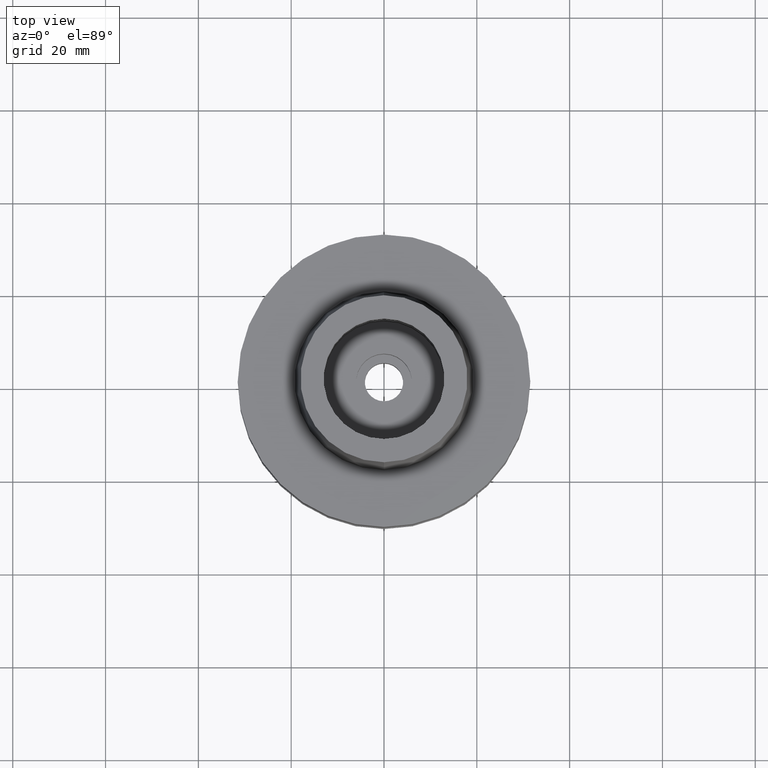
[diagram: clean part render]
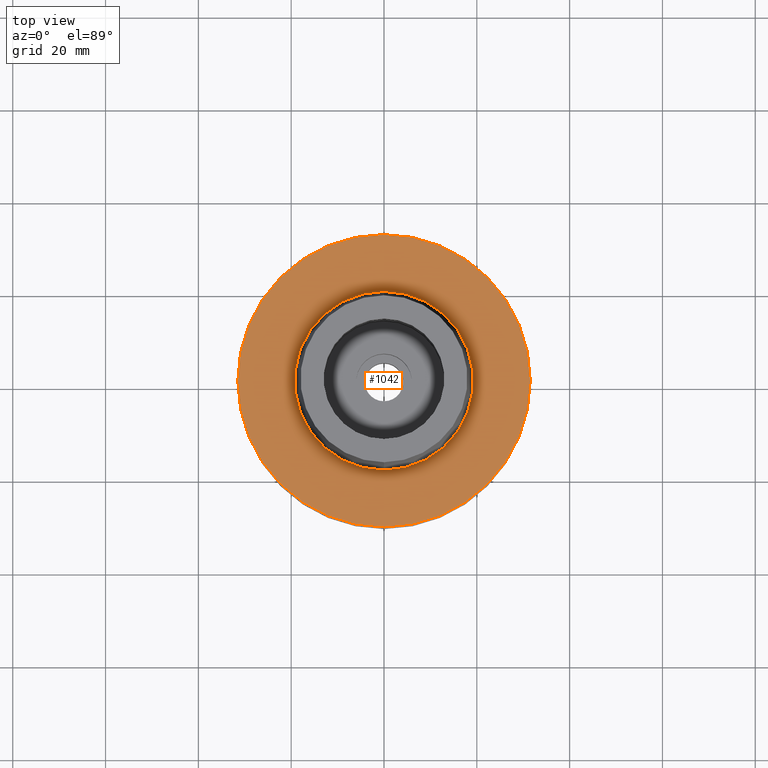
[diagram: same view with one face highlighted and labeled with its STEP entity id]
A machine part, top view. The second image highlights one B-rep face of the part: STEP entity #1042.
In plain terms, the highlighted planar face has unit normal (0, 0, 1).
Its self-contained STEP definition (entity closure, byte-faithful):
#26 = CARTESIAN_POINT ( 'NONE',  ( 0.0000000000000000000, 31.50000000000000000, 0.0000000000000000000 ) ) ;
#73 = DIRECTION ( 'NONE',  ( 0.0000000000000000000, 0.0000000000000000000, 1.000000000000000000 ) ) ;
#135 = EDGE_LOOP ( 'NONE', ( #2130, #1835 ) ) ;
#208 = CARTESIAN_POINT ( 'NONE',  ( 0.0000000000000000000, 19.24999954280000125, 3.410605131648000255E-13 ) ) ;
#246 = CIRCLE ( 'NONE', #809, 19.24999954280000125 ) ;
#458 = EDGE_CURVE ( 'NONE', #887, #1707, #2003, .T. ) ;
#472 = AXIS2_PLACEMENT_3D ( 'NONE', #2794, #857, #1340 ) ;
#490 = FACE_BOUND ( 'NONE', #739, .T. ) ;
#550 = VERTEX_POINT ( 'NONE', #2428 ) ;
#664 = AXIS2_PLACEMENT_3D ( 'NONE', #1134, #1400, #955 ) ;
#712 = CARTESIAN_POINT ( 'NONE',  ( 0.0000000000000000000, 0.0000000000000000000, 5.115907697473000027E-13 ) ) ;
#721 = CARTESIAN_POINT ( 'NONE',  ( 0.0000000000000000000, 0.0000000000000000000, 0.0000000000000000000 ) ) ;
#739 = EDGE_LOOP ( 'NONE', ( #1955, #1124 ) ) ;
#809 = AXIS2_PLACEMENT_3D ( 'NONE', #2272, #1617, #2041 ) ;
#857 = DIRECTION ( 'NONE',  ( 0.0000000000000000000, 0.0000000000000000000, -1.000000000000000000 ) ) ;
#887 = VERTEX_POINT ( 'NONE', #208 ) ;
#955 = DIRECTION ( 'NONE',  ( 0.0000000000000000000, 1.000000000000000000, 0.0000000000000000000 ) ) ;
#1035 = AXIS2_PLACEMENT_3D ( 'NONE', #721, #73, #1185 ) ;
#1042 = ADVANCED_FACE ( 'NONE', ( #2047, #490 ), #1842, .T. ) ;
#1054 = VERTEX_POINT ( 'NONE', #26 ) ;
#1124 = ORIENTED_EDGE ( 'NONE', *, *, #1522, .F. ) ;
#1134 = CARTESIAN_POINT ( 'NONE',  ( 0.0000000000000000000, 0.0000000000000000000, 0.0000000000000000000 ) ) ;
#1185 = DIRECTION ( 'NONE',  ( 1.000000000000000000, 0.0000000000000000000, 0.0000000000000000000 ) ) ;
#1340 = DIRECTION ( 'NONE',  ( 0.0000000000000000000, -1.000000000000000000, 0.0000000000000000000 ) ) ;
#1348 = DIRECTION ( 'NONE',  ( 0.0000000000000000000, 1.000000000000000000, 0.0000000000000000000 ) ) ;
#1400 = DIRECTION ( 'NONE',  ( 0.0000000000000000000, 0.0000000000000000000, -1.000000000000000000 ) ) ;
#1522 = EDGE_CURVE ( 'NONE', #1707, #887, #246, .T. ) ;
#1535 = EDGE_CURVE ( 'NONE', #1054, #550, #1878, .T. ) ;
#1617 = DIRECTION ( 'NONE',  ( 0.0000000000000000000, 0.0000000000000000000, 1.000000000000000000 ) ) ;
#1707 = VERTEX_POINT ( 'NONE', #2525 ) ;
#1835 = ORIENTED_EDGE ( 'NONE', *, *, #1986, .F. ) ;
#1842 = PLANE ( 'NONE',  #1035 ) ;
#1878 = CIRCLE ( 'NONE', #664, 31.50000000000000000 ) ;
#1955 = ORIENTED_EDGE ( 'NONE', *, *, #458, .F. ) ;
#1986 = EDGE_CURVE ( 'NONE', #550, #1054, #2108, .T. ) ;
#2003 = CIRCLE ( 'NONE', #2547, 19.24999954280000125 ) ;
#2041 = DIRECTION ( 'NONE',  ( 0.0000000000000000000, -1.000000000000000000, 0.0000000000000000000 ) ) ;
#2047 = FACE_OUTER_BOUND ( 'NONE', #135, .T. ) ;
#2108 = CIRCLE ( 'NONE', #472, 31.50000000000000000 ) ;
#2130 = ORIENTED_EDGE ( 'NONE', *, *, #1535, .F. ) ;
#2272 = CARTESIAN_POINT ( 'NONE',  ( 0.0000000000000000000, 0.0000000000000000000, 5.115907697473000027E-13 ) ) ;
#2428 = CARTESIAN_POINT ( 'NONE',  ( 0.0000000000000000000, -31.50000000000000000, 0.0000000000000000000 ) ) ;
#2525 = CARTESIAN_POINT ( 'NONE',  ( 0.0000000000000000000, -19.24999954280000125, 3.410605131648000255E-13 ) ) ;
#2547 = AXIS2_PLACEMENT_3D ( 'NONE', #712, #2672, #1348 ) ;
#2672 = DIRECTION ( 'NONE',  ( 0.0000000000000000000, 0.0000000000000000000, 1.000000000000000000 ) ) ;
#2794 = CARTESIAN_POINT ( 'NONE',  ( 0.0000000000000000000, 0.0000000000000000000, 0.0000000000000000000 ) ) ;